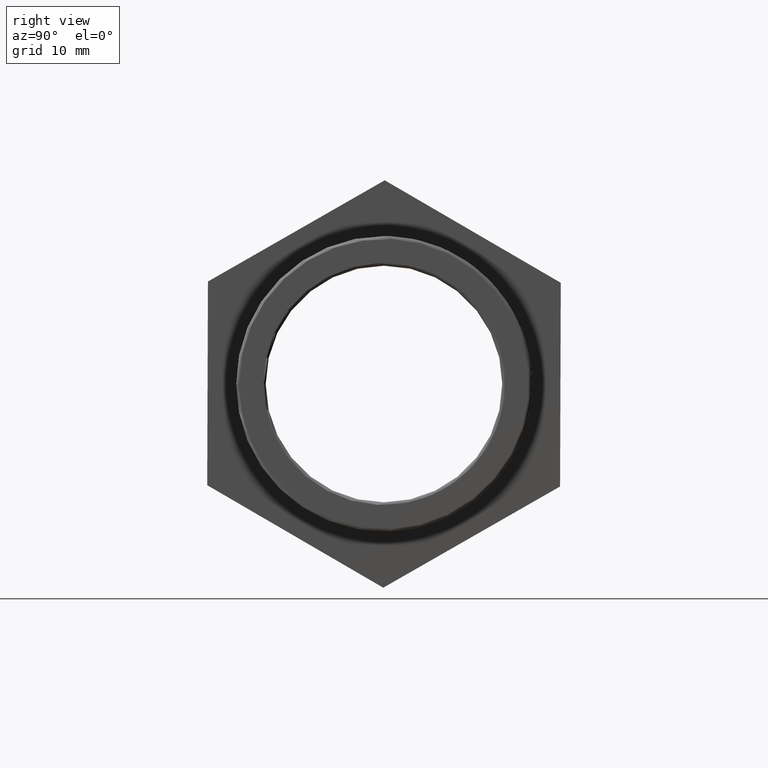
[diagram: clean part render]
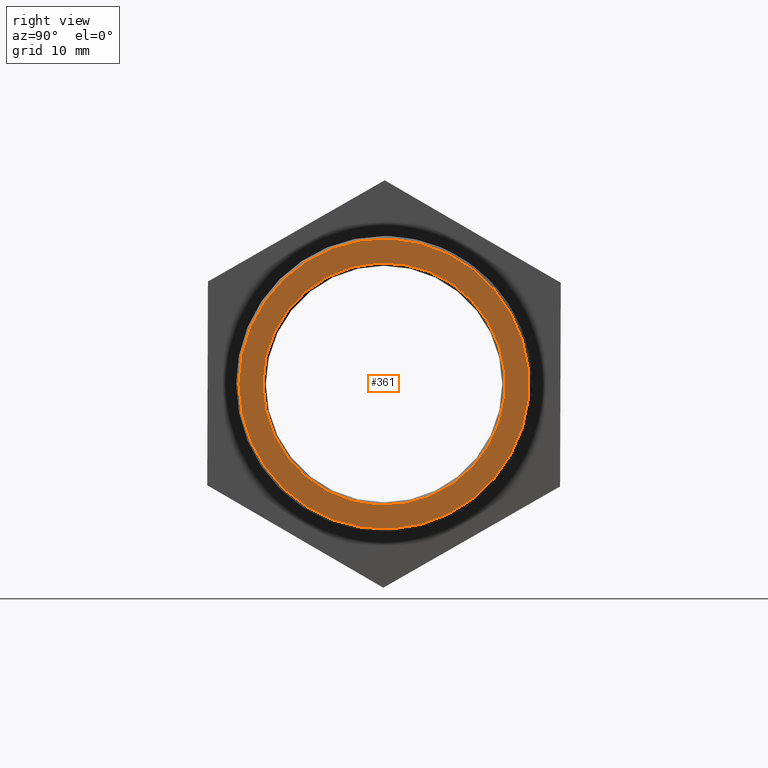
[diagram: same view with one face highlighted and labeled with its STEP entity id]
A machine part, right view. The second image highlights one B-rep face of the part: STEP entity #361.
In plain terms, the highlighted planar face has unit normal (1, 0, 0).
Its self-contained STEP definition (entity closure, byte-faithful):
#21=FACE_BOUND('',#98,.T.);
#45=CIRCLE('',#396,17.164);
#46=CIRCLE('',#398,20.555);
#70=FACE_OUTER_BOUND('',#97,.T.);
#97=EDGE_LOOP('',(#295));
#98=EDGE_LOOP('',(#296));
#190=VERTEX_POINT('',#601);
#191=VERTEX_POINT('',#604);
#233=EDGE_CURVE('',#190,#190,#45,.T.);
#234=EDGE_CURVE('',#191,#191,#46,.T.);
#295=ORIENTED_EDGE('',*,*,#234,.F.);
#296=ORIENTED_EDGE('',*,*,#233,.F.);
#343=PLANE('',#397);
#361=ADVANCED_FACE('',(#70,#21),#343,.T.);
#396=AXIS2_PLACEMENT_3D('',#602,#487,#488);
#397=AXIS2_PLACEMENT_3D('',#603,#489,#490);
#398=AXIS2_PLACEMENT_3D('',#605,#491,#492);
#487=DIRECTION('center_axis',(1.,6.73555739531044E-16,0.));
#488=DIRECTION('ref_axis',(-6.73555739531044E-16,1.,6.12323399573676E-17));
#489=DIRECTION('center_axis',(1.,6.73555739531044E-16,0.));
#490=DIRECTION('ref_axis',(0.,0.,-1.));
#491=DIRECTION('center_axis',(-1.,-6.73555739531044E-16,0.));
#492=DIRECTION('ref_axis',(-6.73555739531044E-16,1.,6.12323399573677E-17));
#601=CARTESIAN_POINT('',(35.,-17.164,-3.15297564908478E-15));
#602=CARTESIAN_POINT('Origin',(35.,3.00038465791102E-14,0.));
#603=CARTESIAN_POINT('Origin',(35.,-20.955,0.));
#604=CARTESIAN_POINT('',(35.,-20.555,1.25863074782369E-15));
#605=CARTESIAN_POINT('Origin',(35.,3.00038465791102E-14,0.));